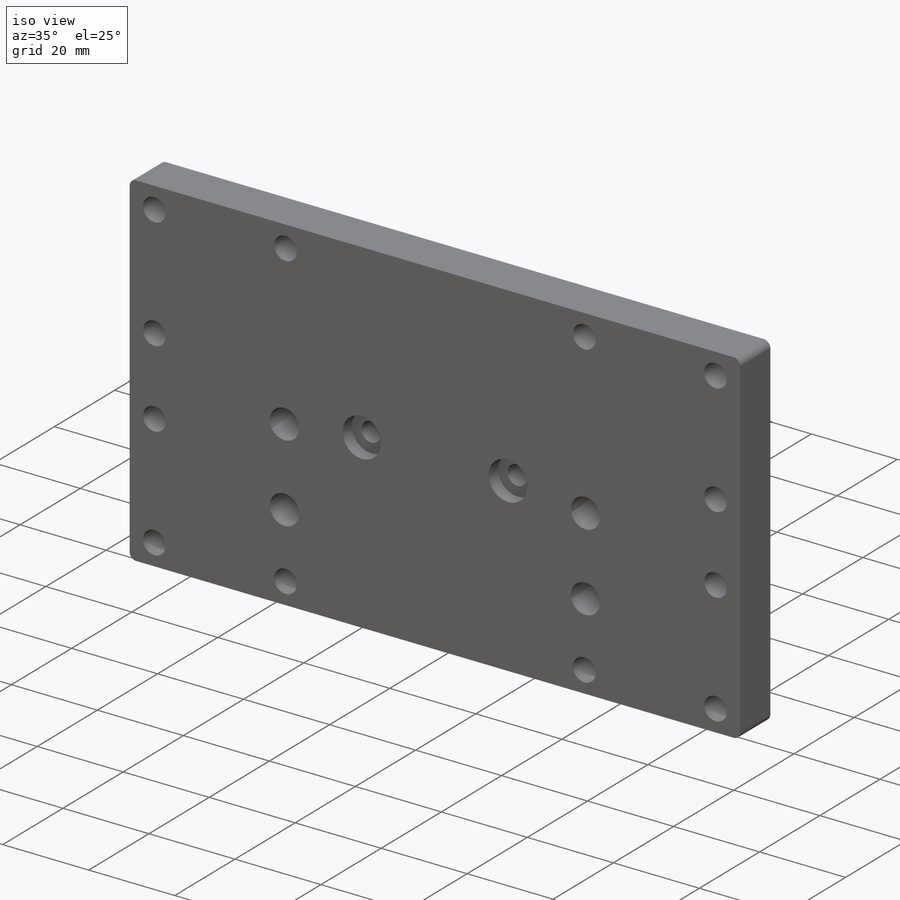
[diagram: iso view]
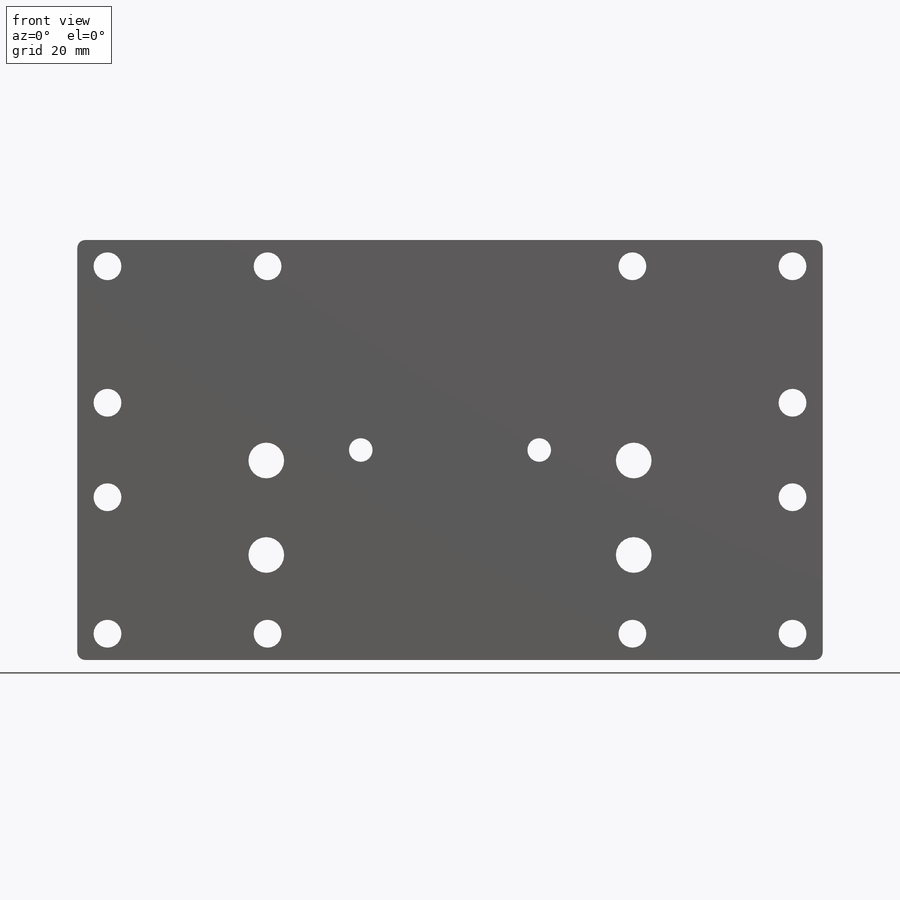
[diagram: front view]
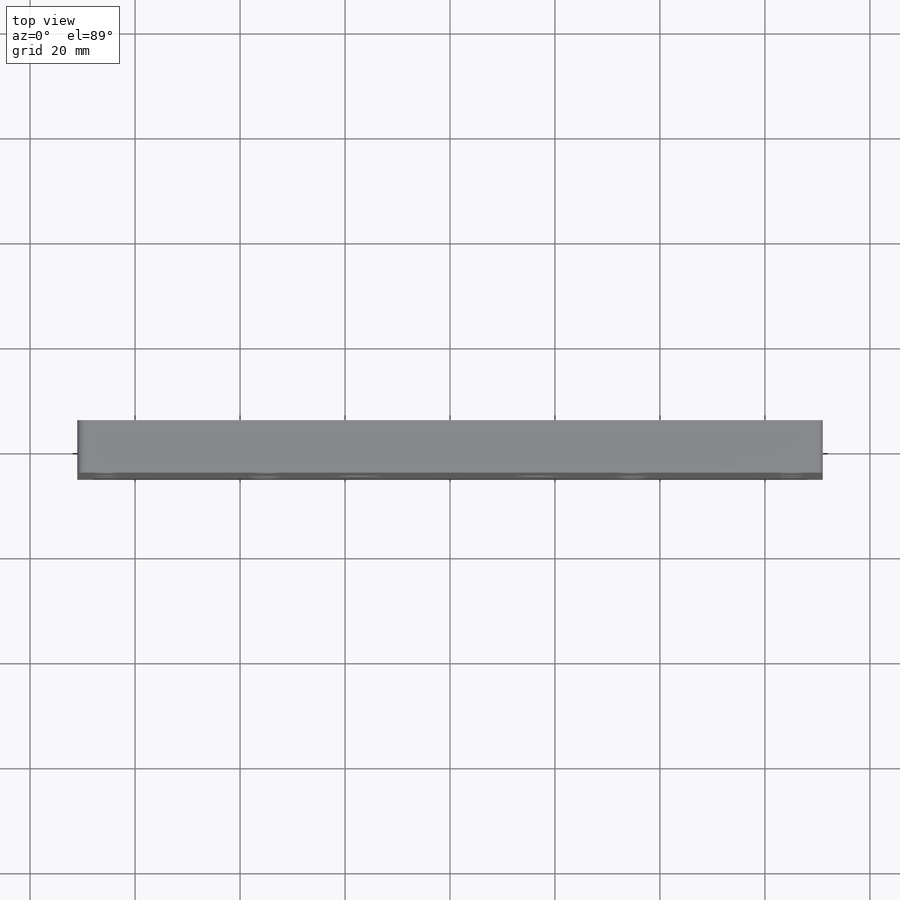
[diagram: top view]
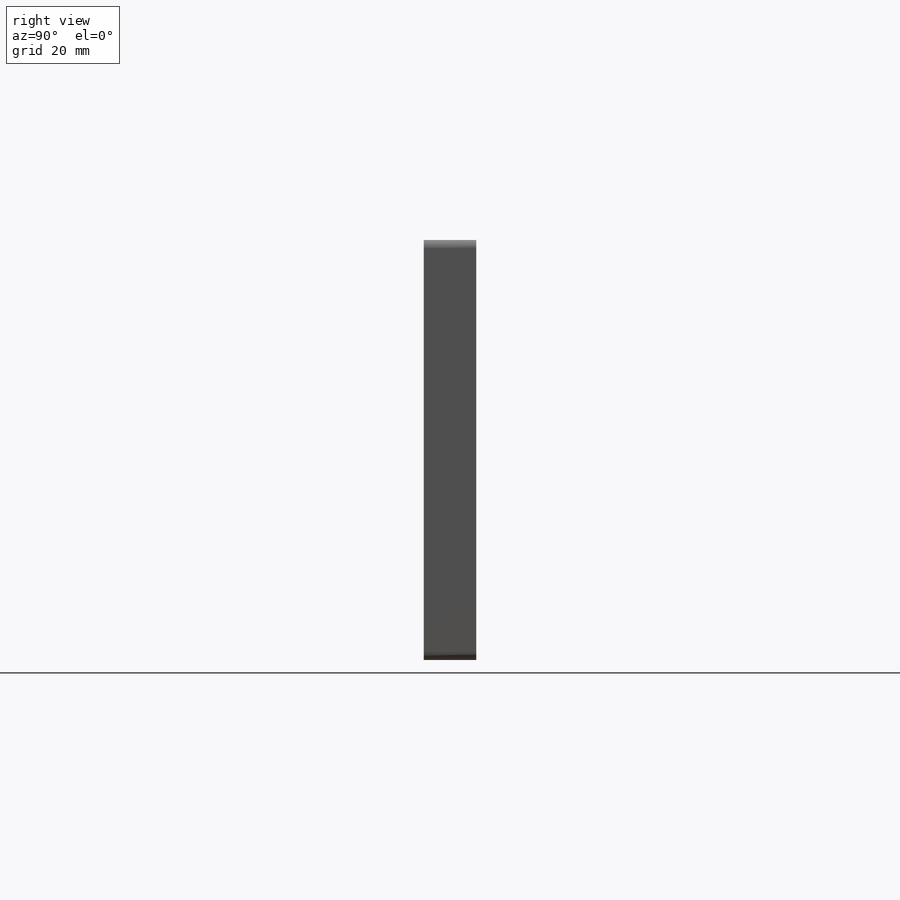
[diagram: right view]
SOLIDWORKS PART (.sldprt)
format: sldprt  version: not decoded by parser v0  size: 322,048 bytes
history: native  units: mm
features: sketch x7, thread x4, hole x3, mirror x2, material x1, extrude x1, fillet x1 (+12 scaffold rows collapsed)
feature tree (31):
  scaffold x12  (default folders/planes/origin — collapsed)
  material  "Material <not specified>"
  sketch  "Sketch1"  dims[D1=80.0mm D2=142.0mm]
  extrude  "Boss-Extrude1"  Depth=10mm
  hole  "M5 Clearance Hole1"  Diameter=5.3mm Depth=10mm
  sketch  "Sketch6"  dims[D1=5.75mm D2=5.0mm D3=26.0mm D4=30.5mm]
  sketch  "Sketch5"  dims[hole-wizard template sketch: 59 standard entries collapsed; hole parameters kept: c18.Thru Hole Dia.=5.3mm c18.Thru Hole Depth=10.0mm]
  mirror  "Mirror1"
  mirror  "Mirror2"
  hole  "CBORE for M4 Pan Head Machine Screw1"  Diameter=4.5mm Depth=10mm
  sketch  "Sketch8"  dims[D1=17.0mm D2=17.0mm]
  sketch  "Sketch7"  dims[hole-wizard template sketch: 42 standard entries collapsed; hole parameters kept: c12.Thru Hole Depth=10.0mm c12.C'Bore Dia.=9.0mm c12.C'Bore Depth=3.1mm]
  hole  "M8x1.25 Tapped Hole1"  Diameter=6.8mm Depth=10mm
  sketch  "Sketch10"  dims[D1=70.0mm D2=35.0mm D3=20.0mm D4=18.0mm]
  sketch  "Sketch9"  dims[hole-wizard template sketch: 60 standard entries collapsed; hole parameters kept: c18.Thru Tap Drill Depth=10.0mm]
  thread  "Hole Thread1"  Diameter=8mm  [1 undecoded]
  thread  "Hole Thread2"  Diameter=8mm  [1 undecoded]
  thread  "Hole Thread3"  Diameter=8mm  [1 undecoded]
  thread  "Hole Thread4"  Diameter=8mm  [1 undecoded]
  fillet  "Fillet1"  Radius=1.5mm
decode coverage: 16 of 18 modeling features carry decoded parameters
note: ~ marks probable driven/reference dimensions
note: 4 parameter values undecoded
note: suppression state not decoded; provenance and decode notes live in map.json
